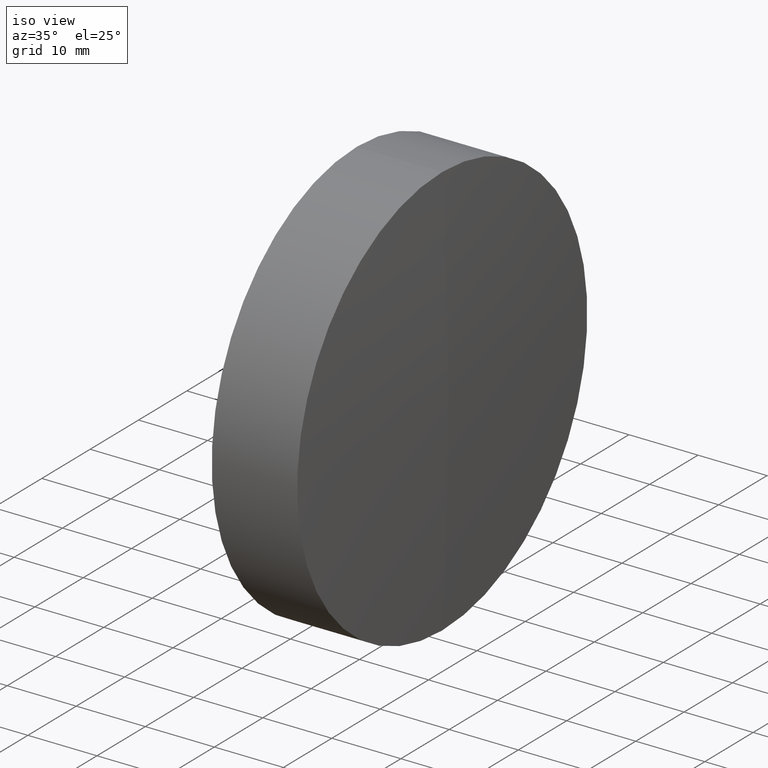
[diagram: clean part render]
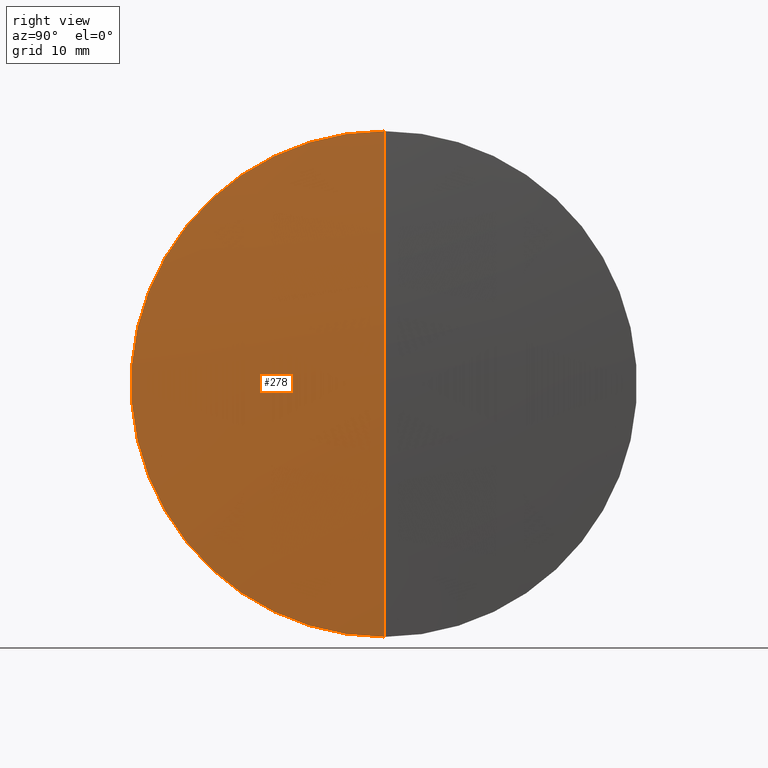
[diagram: tour spotlight — one face highlighted and labeled with its STEP entity id]
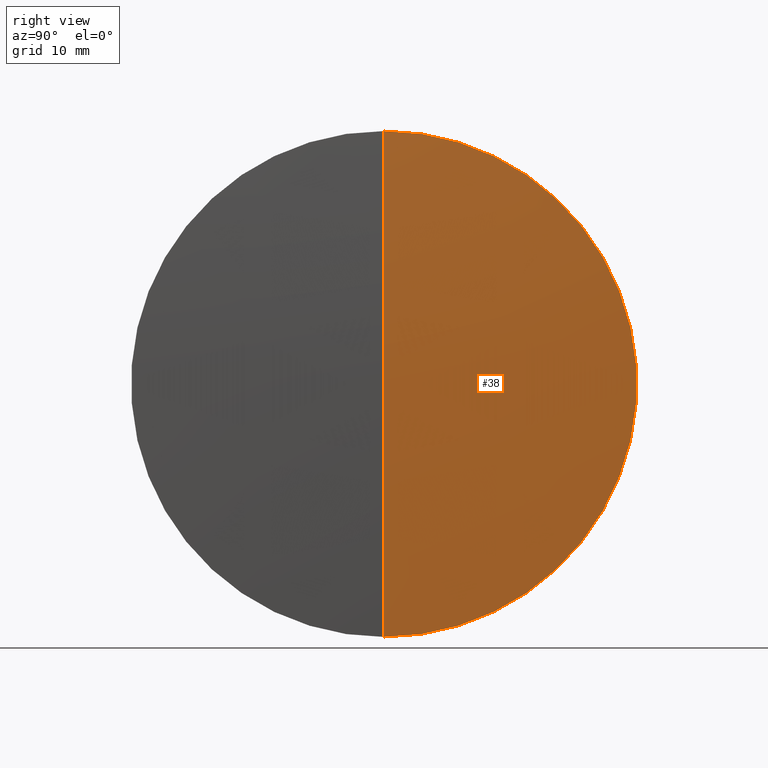
[diagram: tour spotlight — one face highlighted and labeled with its STEP entity id]
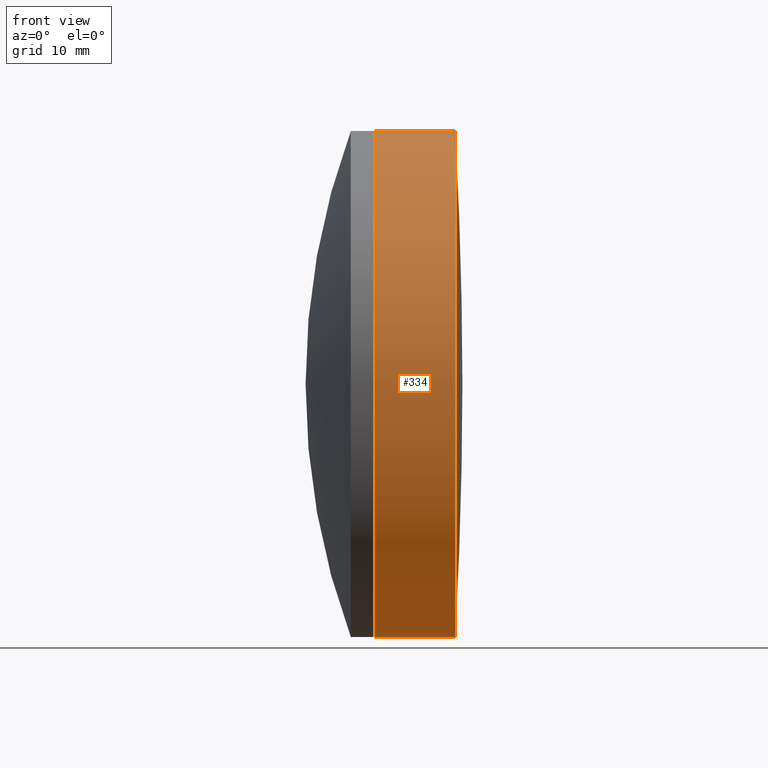
[diagram: tour spotlight — one face highlighted and labeled with its STEP entity id]
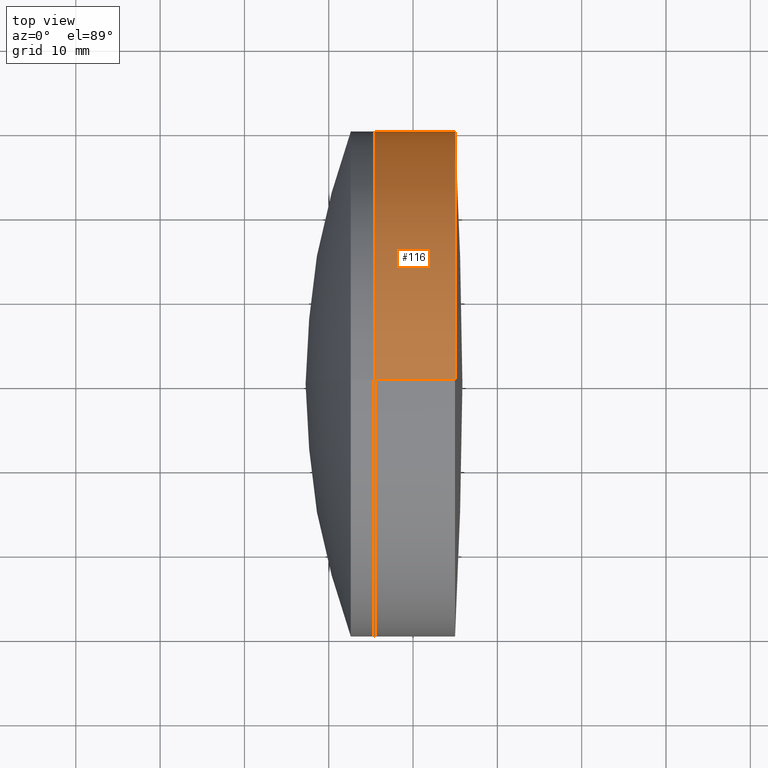
[diagram: tour spotlight — one face highlighted and labeled with its STEP entity id]
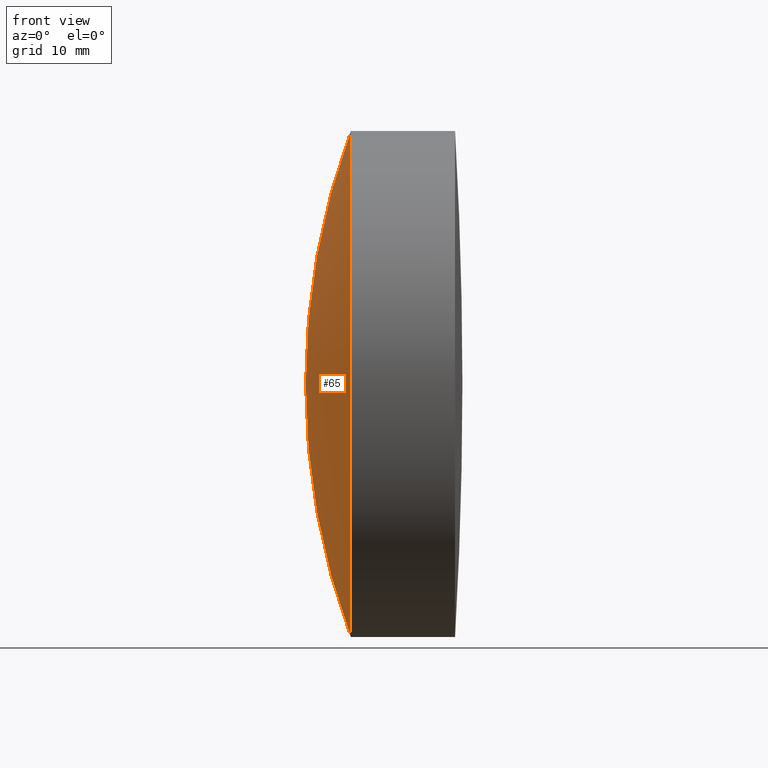
[diagram: tour spotlight — one face highlighted and labeled with its STEP entity id]
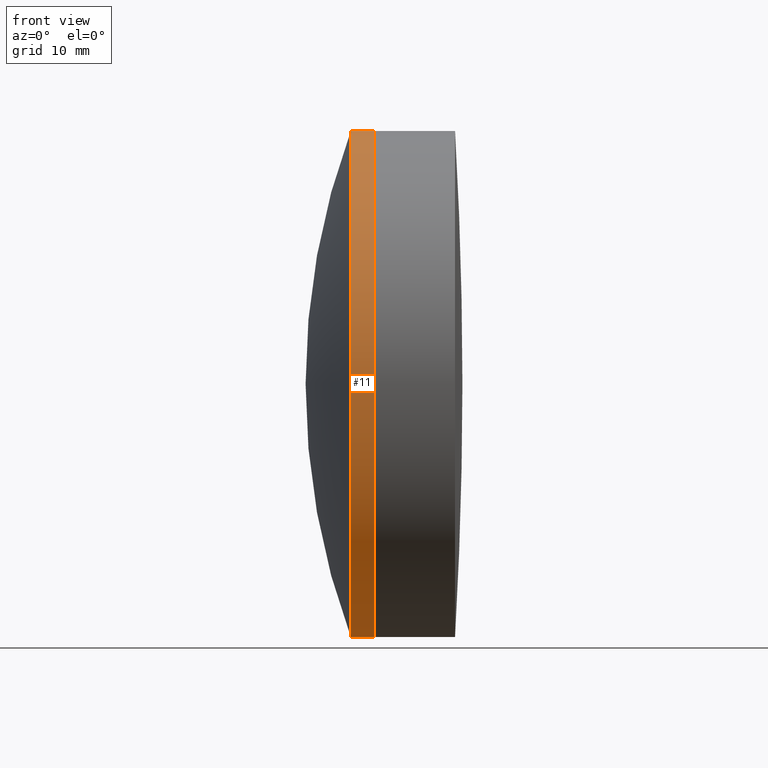
[diagram: tour spotlight — one face highlighted and labeled with its STEP entity id]
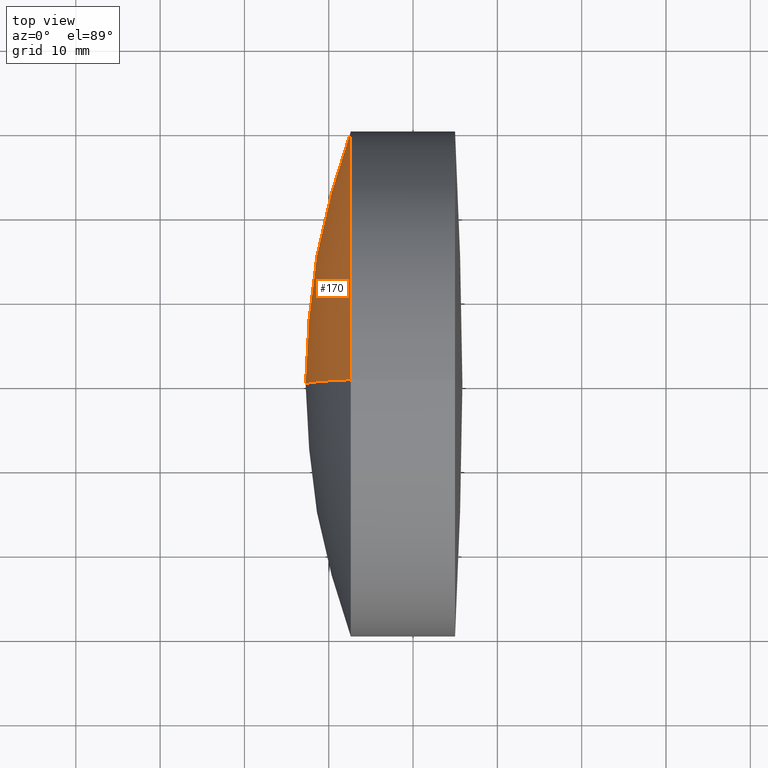
[diagram: tour spotlight — one face highlighted and labeled with its STEP entity id]
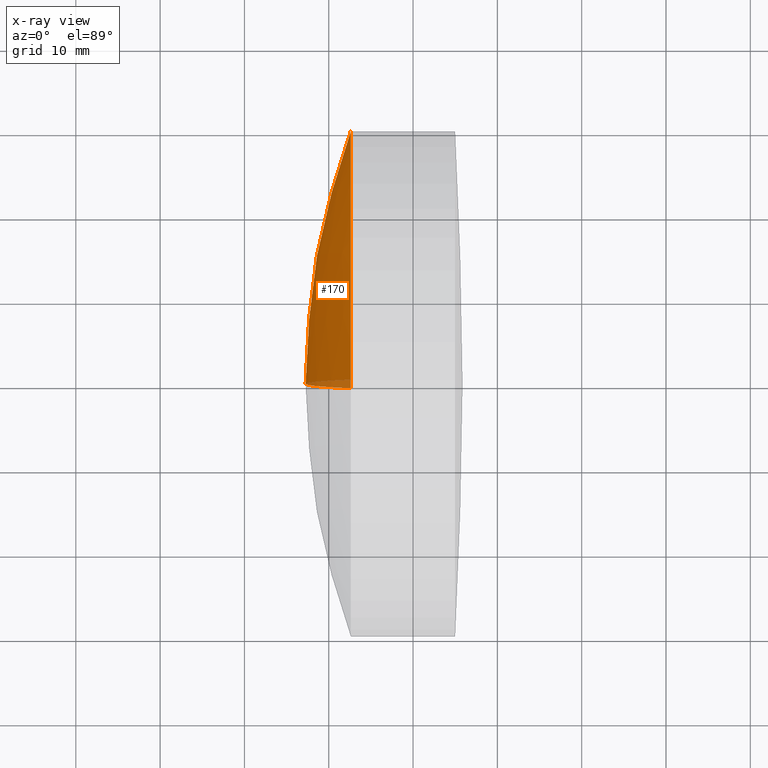
[diagram: x-ray of the same camera — body ghosted, this tour face saturated]
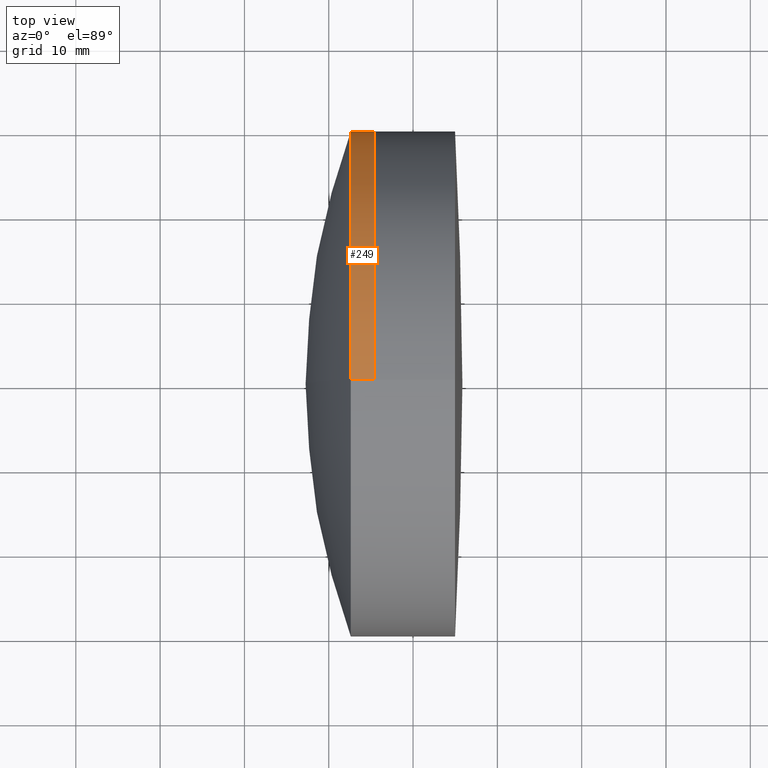
[diagram: tour spotlight — one face highlighted and labeled with its STEP entity id]
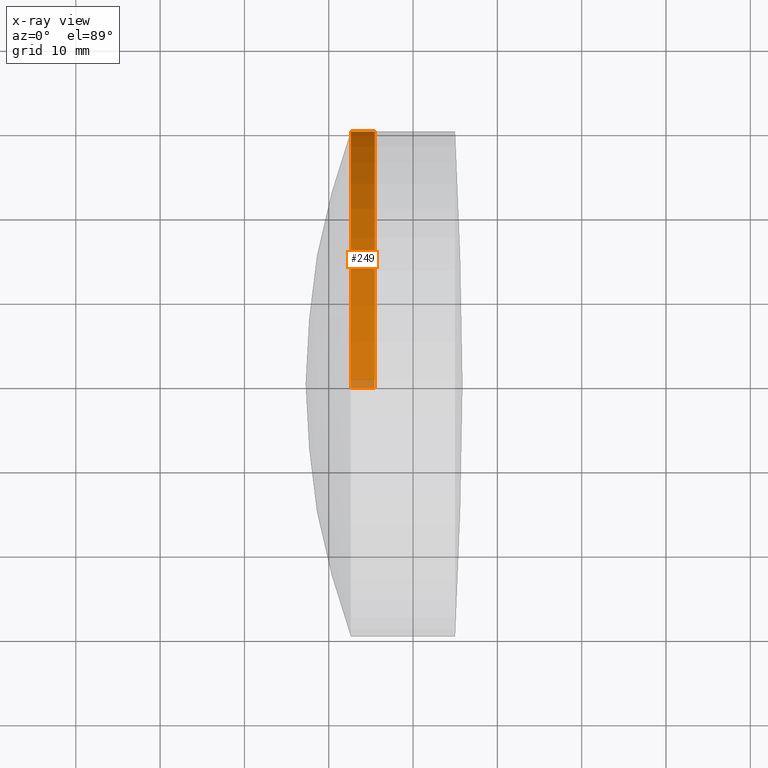
[diagram: x-ray of the same camera — body ghosted, this tour face saturated]
A machine part: a face-by-face anatomy tour. The part has 12 B-rep faces; the first image is the clean iso view, then the 8 largest visible faces are spotlighted one at a time (largest first), each with its STEP entity span.

Face 1 — right view, entity #278. In plain terms, the highlighted spherical surface has radius 515.82 mm.
Definition (entity closure, byte-faithful):
#12 = AXIS2_PLACEMENT_3D ( 'NONE', #245, #274, #114 ) ;
#21 = CARTESIAN_POINT ( 'NONE',  ( 295.8536255512254300, 0.0000000000000000000, 3.158486559680939000E-014 ) ) ;
#33 = CARTESIAN_POINT ( 'NONE',  ( 294.9804892177594400, 0.0000000000000000000, 30.00000000000001400 ) ) ;
#36 = CARTESIAN_POINT ( 'NONE',  ( 294.9804892177594400, 3.673940397442061500E-015, -30.00000000000001400 ) ) ;
#37 = ORIENTED_EDGE ( 'NONE', *, *, #99, .F. ) ;
#47 = SPHERICAL_SURFACE ( 'NONE', #236, 515.8200000000000500 ) ;
#64 = EDGE_CURVE ( 'NONE', #68, #211, #88, .T. ) ;
#68 = VERTEX_POINT ( 'NONE', #21 ) ;
#74 = AXIS2_PLACEMENT_3D ( 'NONE', #204, #177, #339 ) ;
#80 = FACE_OUTER_BOUND ( 'NONE', #284, .T. ) ;
#88 = CIRCLE ( 'NONE', #12, 515.8200000000000500 ) ;
#99 = EDGE_CURVE ( 'NONE', #300, #211, #265, .T. ) ;
#114 = DIRECTION ( 'NONE',  ( 0.0000000000000000000, 0.0000000000000000000, -1.000000000000000000 ) ) ;
#153 = DIRECTION ( 'NONE',  ( 0.0000000000000000000, -1.224646799147353200E-016, 1.000000000000000000 ) ) ;
#167 = DIRECTION ( 'NONE',  ( 0.0000000000000000000, 0.0000000000000000000, 1.000000000000000000 ) ) ;
#177 = DIRECTION ( 'NONE',  ( -1.000000000000000000, -0.0000000000000000000, -0.0000000000000000000 ) ) ;
#198 = CARTESIAN_POINT ( 'NONE',  ( -219.9663744487746400, 0.0000000000000000000, 0.0000000000000000000 ) ) ;
#204 = CARTESIAN_POINT ( 'NONE',  ( 294.9804892177594400, 0.0000000000000000000, 0.0000000000000000000 ) ) ;
#209 = EDGE_CURVE ( 'NONE', #68, #300, #281, .T. ) ;
#211 = VERTEX_POINT ( 'NONE', #33 ) ;
#217 = DIRECTION ( 'NONE',  ( -0.0000000000000000000, 1.000000000000000000, 1.224646799147353200E-016 ) ) ;
#218 = CARTESIAN_POINT ( 'NONE',  ( -219.9663744487746400, 0.0000000000000000000, 0.0000000000000000000 ) ) ;
#222 = DIRECTION ( 'NONE',  ( 0.0000000000000000000, 1.000000000000000000, 0.0000000000000000000 ) ) ;
#236 = AXIS2_PLACEMENT_3D ( 'NONE', #198, #222, #167 ) ;
#245 = CARTESIAN_POINT ( 'NONE',  ( -219.9663744487746400, 0.0000000000000000000, 0.0000000000000000000 ) ) ;
#265 = CIRCLE ( 'NONE', #74, 30.00000000000001400 ) ;
#274 = DIRECTION ( 'NONE',  ( 0.0000000000000000000, -1.000000000000000000, 0.0000000000000000000 ) ) ;
#278 = ADVANCED_FACE ( 'NONE', ( #80 ), #47, .T. ) ;
#280 = ORIENTED_EDGE ( 'NONE', *, *, #209, .F. ) ;
#281 = CIRCLE ( 'NONE', #290, 515.8200000000000500 ) ;
#284 = EDGE_LOOP ( 'NONE', ( #280, #312, #37 ) ) ;
#290 = AXIS2_PLACEMENT_3D ( 'NONE', #218, #217, #153 ) ;
#300 = VERTEX_POINT ( 'NONE', #36 ) ;
#312 = ORIENTED_EDGE ( 'NONE', *, *, #64, .T. ) ;
#339 = DIRECTION ( 'NONE',  ( 0.0000000000000000000, 0.0000000000000000000, 1.000000000000000000 ) ) ;

Face 2 — right view, entity #38. In plain terms, the highlighted spherical surface has radius 515.82 mm.
Definition (entity closure, byte-faithful):
#12 = AXIS2_PLACEMENT_3D ( 'NONE', #245, #274, #114 ) ;
#16 = DIRECTION ( 'NONE',  ( 0.0000000000000000000, 0.0000000000000000000, 1.000000000000000000 ) ) ;
#21 = CARTESIAN_POINT ( 'NONE',  ( 295.8536255512254300, 0.0000000000000000000, 3.158486559680939000E-014 ) ) ;
#22 = DIRECTION ( 'NONE',  ( 0.0000000000000000000, 1.000000000000000000, 0.0000000000000000000 ) ) ;
#26 = ORIENTED_EDGE ( 'NONE', *, *, #130, .F. ) ;
#27 = CARTESIAN_POINT ( 'NONE',  ( -219.9663744487746400, 0.0000000000000000000, 0.0000000000000000000 ) ) ;
#33 = CARTESIAN_POINT ( 'NONE',  ( 294.9804892177594400, 0.0000000000000000000, 30.00000000000001400 ) ) ;
#36 = CARTESIAN_POINT ( 'NONE',  ( 294.9804892177594400, 3.673940397442061500E-015, -30.00000000000001400 ) ) ;
#38 = ADVANCED_FACE ( 'NONE', ( #258 ), #285, .T. ) ;
#53 = ORIENTED_EDGE ( 'NONE', *, *, #64, .F. ) ;
#64 = EDGE_CURVE ( 'NONE', #68, #211, #88, .T. ) ;
#68 = VERTEX_POINT ( 'NONE', #21 ) ;
#78 = EDGE_LOOP ( 'NONE', ( #53, #220, #26 ) ) ;
#88 = CIRCLE ( 'NONE', #12, 515.8200000000000500 ) ;
#114 = DIRECTION ( 'NONE',  ( 0.0000000000000000000, 0.0000000000000000000, -1.000000000000000000 ) ) ;
#118 = AXIS2_PLACEMENT_3D ( 'NONE', #228, #203, #16 ) ;
#130 = EDGE_CURVE ( 'NONE', #211, #300, #206, .T. ) ;
#153 = DIRECTION ( 'NONE',  ( 0.0000000000000000000, -1.224646799147353200E-016, 1.000000000000000000 ) ) ;
#183 = DIRECTION ( 'NONE',  ( 0.0000000000000000000, 0.0000000000000000000, 1.000000000000000000 ) ) ;
#203 = DIRECTION ( 'NONE',  ( -1.000000000000000000, -0.0000000000000000000, -0.0000000000000000000 ) ) ;
#206 = CIRCLE ( 'NONE', #118, 30.00000000000001400 ) ;
#209 = EDGE_CURVE ( 'NONE', #68, #300, #281, .T. ) ;
#211 = VERTEX_POINT ( 'NONE', #33 ) ;
#217 = DIRECTION ( 'NONE',  ( -0.0000000000000000000, 1.000000000000000000, 1.224646799147353200E-016 ) ) ;
#218 = CARTESIAN_POINT ( 'NONE',  ( -219.9663744487746400, 0.0000000000000000000, 0.0000000000000000000 ) ) ;
#220 = ORIENTED_EDGE ( 'NONE', *, *, #209, .T. ) ;
#228 = CARTESIAN_POINT ( 'NONE',  ( 294.9804892177594400, 0.0000000000000000000, 0.0000000000000000000 ) ) ;
#245 = CARTESIAN_POINT ( 'NONE',  ( -219.9663744487746400, 0.0000000000000000000, 0.0000000000000000000 ) ) ;
#258 = FACE_OUTER_BOUND ( 'NONE', #78, .T. ) ;
#259 = AXIS2_PLACEMENT_3D ( 'NONE', #27, #22, #183 ) ;
#274 = DIRECTION ( 'NONE',  ( 0.0000000000000000000, -1.000000000000000000, 0.0000000000000000000 ) ) ;
#281 = CIRCLE ( 'NONE', #290, 515.8200000000000500 ) ;
#285 = SPHERICAL_SURFACE ( 'NONE', #259, 515.8200000000000500 ) ;
#290 = AXIS2_PLACEMENT_3D ( 'NONE', #218, #217, #153 ) ;
#300 = VERTEX_POINT ( 'NONE', #36 ) ;

Face 3 — front view, entity #334. In plain terms, the highlighted cylindrical surface (partial cylindrical patch) has radius 30 mm, axis along (-1, -0, -0).
Definition (entity closure, byte-faithful):
#1 = AXIS2_PLACEMENT_3D ( 'NONE', #165, #191, #329 ) ;
#10 = CARTESIAN_POINT ( 'NONE',  ( 285.4402420783391700, 3.673940397442063100E-015, -30.00000000000003200 ) ) ;
#15 = VERTEX_POINT ( 'NONE', #168 ) ;
#17 = EDGE_LOOP ( 'NONE', ( #230, #147, #180, #187 ) ) ;
#30 = DIRECTION ( 'NONE',  ( -1.000000000000000000, -0.0000000000000000000, -0.0000000000000000000 ) ) ;
#33 = CARTESIAN_POINT ( 'NONE',  ( 294.9804892177594400, 0.0000000000000000000, 30.00000000000001400 ) ) ;
#36 = CARTESIAN_POINT ( 'NONE',  ( 294.9804892177594400, 3.673940397442061500E-015, -30.00000000000001400 ) ) ;
#70 = CIRCLE ( 'NONE', #95, 30.00000000000002500 ) ;
#74 = AXIS2_PLACEMENT_3D ( 'NONE', #204, #177, #339 ) ;
#83 = CARTESIAN_POINT ( 'NONE',  ( -0.5519199926577972300, 3.673940397442062300E-015, -30.00000000000002100 ) ) ;
#94 = VERTEX_POINT ( 'NONE', #10 ) ;
#95 = AXIS2_PLACEMENT_3D ( 'NONE', #145, #306, #117 ) ;
#99 = EDGE_CURVE ( 'NONE', #300, #211, #265, .T. ) ;
#101 = FACE_OUTER_BOUND ( 'NONE', #17, .T. ) ;
#117 = DIRECTION ( 'NONE',  ( 0.0000000000000000000, 0.0000000000000000000, 1.000000000000000000 ) ) ;
#119 = LINE ( 'NONE', #251, #253 ) ;
#122 = CYLINDRICAL_SURFACE ( 'NONE', #1, 30.00000000000002100 ) ;
#145 = CARTESIAN_POINT ( 'NONE',  ( 285.4402420783391700, 0.0000000000000000000, 0.0000000000000000000 ) ) ;
#147 = ORIENTED_EDGE ( 'NONE', *, *, #99, .T. ) ;
#165 = CARTESIAN_POINT ( 'NONE',  ( -0.5519199926577972300, 0.0000000000000000000, 0.0000000000000000000 ) ) ;
#168 = CARTESIAN_POINT ( 'NONE',  ( 285.4402420783391700, 0.0000000000000000000, 30.00000000000003200 ) ) ;
#177 = DIRECTION ( 'NONE',  ( -1.000000000000000000, -0.0000000000000000000, -0.0000000000000000000 ) ) ;
#180 = ORIENTED_EDGE ( 'NONE', *, *, #262, .T. ) ;
#187 = ORIENTED_EDGE ( 'NONE', *, *, #248, .F. ) ;
#191 = DIRECTION ( 'NONE',  ( -1.000000000000000000, -0.0000000000000000000, -0.0000000000000000000 ) ) ;
#204 = CARTESIAN_POINT ( 'NONE',  ( 294.9804892177594400, 0.0000000000000000000, 0.0000000000000000000 ) ) ;
#211 = VERTEX_POINT ( 'NONE', #33 ) ;
#230 = ORIENTED_EDGE ( 'NONE', *, *, #232, .F. ) ;
#232 = EDGE_CURVE ( 'NONE', #300, #94, #268, .T. ) ;
#248 = EDGE_CURVE ( 'NONE', #94, #15, #70, .T. ) ;
#251 = CARTESIAN_POINT ( 'NONE',  ( -0.5519199926577972300, 0.0000000000000000000, 30.00000000000002100 ) ) ;
#253 = VECTOR ( 'NONE', #277, 1000.000000000000000 ) ;
#262 = EDGE_CURVE ( 'NONE', #211, #15, #119, .T. ) ;
#265 = CIRCLE ( 'NONE', #74, 30.00000000000001400 ) ;
#268 = LINE ( 'NONE', #83, #337 ) ;
#277 = DIRECTION ( 'NONE',  ( -1.000000000000000000, -0.0000000000000000000, -0.0000000000000000000 ) ) ;
#300 = VERTEX_POINT ( 'NONE', #36 ) ;
#306 = DIRECTION ( 'NONE',  ( -1.000000000000000000, -0.0000000000000000000, -0.0000000000000000000 ) ) ;
#329 = DIRECTION ( 'NONE',  ( 0.0000000000000000000, 0.0000000000000000000, 1.000000000000000000 ) ) ;
#334 = ADVANCED_FACE ( 'NONE', ( #101 ), #122, .T. ) ;
#337 = VECTOR ( 'NONE', #30, 1000.000000000000000 ) ;
#339 = DIRECTION ( 'NONE',  ( 0.0000000000000000000, 0.0000000000000000000, 1.000000000000000000 ) ) ;

Face 4 — top view, entity #116. In plain terms, the highlighted cylindrical surface (partial cylindrical patch) has radius 30 mm, axis along (-1, -0, -0).
Definition (entity closure, byte-faithful):
#2 = ORIENTED_EDGE ( 'NONE', *, *, #232, .T. ) ;
#4 = CARTESIAN_POINT ( 'NONE',  ( 285.4402420783391700, 0.0000000000000000000, 0.0000000000000000000 ) ) ;
#10 = CARTESIAN_POINT ( 'NONE',  ( 285.4402420783391700, 3.673940397442063100E-015, -30.00000000000003200 ) ) ;
#15 = VERTEX_POINT ( 'NONE', #168 ) ;
#16 = DIRECTION ( 'NONE',  ( 0.0000000000000000000, 0.0000000000000000000, 1.000000000000000000 ) ) ;
#30 = DIRECTION ( 'NONE',  ( -1.000000000000000000, -0.0000000000000000000, -0.0000000000000000000 ) ) ;
#33 = CARTESIAN_POINT ( 'NONE',  ( 294.9804892177594400, 0.0000000000000000000, 30.00000000000001400 ) ) ;
#35 = DIRECTION ( 'NONE',  ( 0.0000000000000000000, 0.0000000000000000000, 1.000000000000000000 ) ) ;
#36 = CARTESIAN_POINT ( 'NONE',  ( 294.9804892177594400, 3.673940397442061500E-015, -30.00000000000001400 ) ) ;
#40 = CYLINDRICAL_SURFACE ( 'NONE', #42, 30.00000000000002100 ) ;
#42 = AXIS2_PLACEMENT_3D ( 'NONE', #221, #347, #35 ) ;
#62 = FACE_OUTER_BOUND ( 'NONE', #345, .T. ) ;
#83 = CARTESIAN_POINT ( 'NONE',  ( -0.5519199926577972300, 3.673940397442062300E-015, -30.00000000000002100 ) ) ;
#86 = ORIENTED_EDGE ( 'NONE', *, *, #343, .F. ) ;
#94 = VERTEX_POINT ( 'NONE', #10 ) ;
#108 = ORIENTED_EDGE ( 'NONE', *, *, #130, .T. ) ;
#116 = ADVANCED_FACE ( 'NONE', ( #62 ), #40, .T. ) ;
#118 = AXIS2_PLACEMENT_3D ( 'NONE', #228, #203, #16 ) ;
#119 = LINE ( 'NONE', #251, #253 ) ;
#130 = EDGE_CURVE ( 'NONE', #211, #300, #206, .T. ) ;
#162 = DIRECTION ( 'NONE',  ( -1.000000000000000000, -0.0000000000000000000, -0.0000000000000000000 ) ) ;
#168 = CARTESIAN_POINT ( 'NONE',  ( 285.4402420783391700, 0.0000000000000000000, 30.00000000000003200 ) ) ;
#201 = CIRCLE ( 'NONE', #288, 30.00000000000002500 ) ;
#203 = DIRECTION ( 'NONE',  ( -1.000000000000000000, -0.0000000000000000000, -0.0000000000000000000 ) ) ;
#206 = CIRCLE ( 'NONE', #118, 30.00000000000001400 ) ;
#211 = VERTEX_POINT ( 'NONE', #33 ) ;
#221 = CARTESIAN_POINT ( 'NONE',  ( -0.5519199926577972300, 0.0000000000000000000, 0.0000000000000000000 ) ) ;
#228 = CARTESIAN_POINT ( 'NONE',  ( 294.9804892177594400, 0.0000000000000000000, 0.0000000000000000000 ) ) ;
#232 = EDGE_CURVE ( 'NONE', #300, #94, #268, .T. ) ;
#251 = CARTESIAN_POINT ( 'NONE',  ( -0.5519199926577972300, 0.0000000000000000000, 30.00000000000002100 ) ) ;
#253 = VECTOR ( 'NONE', #277, 1000.000000000000000 ) ;
#255 = ORIENTED_EDGE ( 'NONE', *, *, #262, .F. ) ;
#262 = EDGE_CURVE ( 'NONE', #211, #15, #119, .T. ) ;
#268 = LINE ( 'NONE', #83, #337 ) ;
#277 = DIRECTION ( 'NONE',  ( -1.000000000000000000, -0.0000000000000000000, -0.0000000000000000000 ) ) ;
#288 = AXIS2_PLACEMENT_3D ( 'NONE', #4, #162, #327 ) ;
#300 = VERTEX_POINT ( 'NONE', #36 ) ;
#327 = DIRECTION ( 'NONE',  ( 0.0000000000000000000, 0.0000000000000000000, 1.000000000000000000 ) ) ;
#337 = VECTOR ( 'NONE', #30, 1000.000000000000000 ) ;
#343 = EDGE_CURVE ( 'NONE', #15, #94, #201, .T. ) ;
#345 = EDGE_LOOP ( 'NONE', ( #108, #2, #86, #255 ) ) ;
#347 = DIRECTION ( 'NONE',  ( -1.000000000000000000, -0.0000000000000000000, -0.0000000000000000000 ) ) ;

Face 5 — front view, entity #65. In plain terms, the highlighted spherical surface has radius 86.596 mm.
Definition (entity closure, byte-faithful):
#32 = VERTEX_POINT ( 'NONE', #289 ) ;
#57 = DIRECTION ( 'NONE',  ( 0.0000000000000000000, -1.000000000000000000, -1.224646799147353200E-016 ) ) ;
#58 = DIRECTION ( 'NONE',  ( 0.0000000000000000000, 0.0000000000000000000, 1.000000000000000000 ) ) ;
#59 = DIRECTION ( 'NONE',  ( -0.0000000000000000000, -1.000000000000000000, -0.0000000000000000000 ) ) ;
#61 = VERTEX_POINT ( 'NONE', #316 ) ;
#65 = ADVANCED_FACE ( 'NONE', ( #152 ), #98, .T. ) ;
#71 = ORIENTED_EDGE ( 'NONE', *, *, #305, .F. ) ;
#87 = CARTESIAN_POINT ( 'NONE',  ( 363.8496255512254700, 0.0000000000000000000, 1.092194461860211400E-015 ) ) ;
#98 = SPHERICAL_SURFACE ( 'NONE', #279, 86.59599999999997500 ) ;
#126 = ORIENTED_EDGE ( 'NONE', *, *, #154, .T. ) ;
#131 = AXIS2_PLACEMENT_3D ( 'NONE', #273, #57, #136 ) ;
#132 = CARTESIAN_POINT ( 'NONE',  ( 363.8496255512254700, 0.0000000000000000000, 1.092194461860211400E-015 ) ) ;
#136 = DIRECTION ( 'NONE',  ( 0.0000000000000000000, 1.224646799147353200E-016, -1.000000000000000000 ) ) ;
#139 = DIRECTION ( 'NONE',  ( -1.000000000000000000, -0.0000000000000000000, -0.0000000000000000000 ) ) ;
#141 = ORIENTED_EDGE ( 'NONE', *, *, #149, .T. ) ;
#144 = CARTESIAN_POINT ( 'NONE',  ( 282.6162136076169400, 0.0000000000000000000, 0.0000000000000000000 ) ) ;
#149 = EDGE_CURVE ( 'NONE', #61, #156, #328, .T. ) ;
#152 = FACE_OUTER_BOUND ( 'NONE', #315, .T. ) ;
#154 = EDGE_CURVE ( 'NONE', #156, #32, #309, .T. ) ;
#156 = VERTEX_POINT ( 'NONE', #304 ) ;
#185 = AXIS2_PLACEMENT_3D ( 'NONE', #144, #139, #264 ) ;
#244 = DIRECTION ( 'NONE',  ( 0.0000000000000000000, 1.000000000000000000, -0.0000000000000000000 ) ) ;
#260 = AXIS2_PLACEMENT_3D ( 'NONE', #87, #244, #58 ) ;
#264 = DIRECTION ( 'NONE',  ( 0.0000000000000000000, 0.0000000000000000000, 1.000000000000000000 ) ) ;
#273 = CARTESIAN_POINT ( 'NONE',  ( 363.8496255512254700, 0.0000000000000000000, 1.092194461860211400E-015 ) ) ;
#279 = AXIS2_PLACEMENT_3D ( 'NONE', #132, #59, #303 ) ;
#289 = CARTESIAN_POINT ( 'NONE',  ( 277.2536255512254700, 0.0000000000000000000, -4.210281249087997900E-015 ) ) ;
#303 = DIRECTION ( 'NONE',  ( 0.0000000000000000000, 0.0000000000000000000, -1.000000000000000000 ) ) ;
#304 = CARTESIAN_POINT ( 'NONE',  ( 282.6162136076169400, -3.673940397442059200E-015, 30.00000000000000000 ) ) ;
#305 = EDGE_CURVE ( 'NONE', #61, #32, #313, .T. ) ;
#309 = CIRCLE ( 'NONE', #131, 86.59599999999997500 ) ;
#313 = CIRCLE ( 'NONE', #260, 86.59599999999997500 ) ;
#315 = EDGE_LOOP ( 'NONE', ( #141, #126, #71 ) ) ;
#316 = CARTESIAN_POINT ( 'NONE',  ( 282.6162136076169400, 0.0000000000000000000, -30.00000000000000000 ) ) ;
#328 = CIRCLE ( 'NONE', #185, 30.00000000000000000 ) ;

Face 6 — front view, entity #11. In plain terms, the highlighted cylindrical surface (partial cylindrical patch) has radius 30 mm, axis along (-1, -0, -0).
Definition (entity closure, byte-faithful):
#6 = EDGE_CURVE ( 'NONE', #287, #156, #171, .T. ) ;
#11 = ADVANCED_FACE ( 'NONE', ( #346 ), #342, .T. ) ;
#14 = DIRECTION ( 'NONE',  ( -1.000000000000000000, -0.0000000000000000000, -0.0000000000000000000 ) ) ;
#25 = DIRECTION ( 'NONE',  ( -1.000000000000000000, -0.0000000000000000000, -0.0000000000000000000 ) ) ;
#39 = ORIENTED_EDGE ( 'NONE', *, *, #242, .T. ) ;
#46 = AXIS2_PLACEMENT_3D ( 'NONE', #200, #14, #169 ) ;
#48 = CARTESIAN_POINT ( 'NONE',  ( 124.5233095260452400, 0.0000000000000000000, 0.0000000000000000000 ) ) ;
#61 = VERTEX_POINT ( 'NONE', #316 ) ;
#63 = CARTESIAN_POINT ( 'NONE',  ( 285.4402420783391700, 0.0000000000000000000, 30.00000000000000000 ) ) ;
#75 = CIRCLE ( 'NONE', #46, 30.00000000000000000 ) ;
#77 = LINE ( 'NONE', #295, #254 ) ;
#104 = VECTOR ( 'NONE', #25, 1000.000000000000000 ) ;
#134 = CARTESIAN_POINT ( 'NONE',  ( 124.5233095260452400, 0.0000000000000000000, 30.00000000000000000 ) ) ;
#139 = DIRECTION ( 'NONE',  ( -1.000000000000000000, -0.0000000000000000000, -0.0000000000000000000 ) ) ;
#143 = CARTESIAN_POINT ( 'NONE',  ( 285.4402420783391700, 3.673940397442059200E-015, -30.00000000000000000 ) ) ;
#144 = CARTESIAN_POINT ( 'NONE',  ( 282.6162136076169400, 0.0000000000000000000, 0.0000000000000000000 ) ) ;
#149 = EDGE_CURVE ( 'NONE', #61, #156, #328, .T. ) ;
#156 = VERTEX_POINT ( 'NONE', #304 ) ;
#157 = EDGE_LOOP ( 'NONE', ( #308, #39, #291, #225 ) ) ;
#159 = DIRECTION ( 'NONE',  ( 0.0000000000000000000, 0.0000000000000000000, 1.000000000000000000 ) ) ;
#169 = DIRECTION ( 'NONE',  ( 0.0000000000000000000, 0.0000000000000000000, 1.000000000000000000 ) ) ;
#171 = LINE ( 'NONE', #134, #104 ) ;
#176 = EDGE_CURVE ( 'NONE', #293, #61, #77, .T. ) ;
#185 = AXIS2_PLACEMENT_3D ( 'NONE', #144, #139, #264 ) ;
#188 = DIRECTION ( 'NONE',  ( -1.000000000000000000, -0.0000000000000000000, -0.0000000000000000000 ) ) ;
#196 = AXIS2_PLACEMENT_3D ( 'NONE', #48, #188, #159 ) ;
#200 = CARTESIAN_POINT ( 'NONE',  ( 285.4402420783391700, 0.0000000000000000000, 0.0000000000000000000 ) ) ;
#225 = ORIENTED_EDGE ( 'NONE', *, *, #149, .F. ) ;
#231 = DIRECTION ( 'NONE',  ( -1.000000000000000000, -0.0000000000000000000, -0.0000000000000000000 ) ) ;
#242 = EDGE_CURVE ( 'NONE', #293, #287, #75, .T. ) ;
#254 = VECTOR ( 'NONE', #231, 1000.000000000000000 ) ;
#264 = DIRECTION ( 'NONE',  ( 0.0000000000000000000, 0.0000000000000000000, 1.000000000000000000 ) ) ;
#287 = VERTEX_POINT ( 'NONE', #63 ) ;
#291 = ORIENTED_EDGE ( 'NONE', *, *, #6, .T. ) ;
#293 = VERTEX_POINT ( 'NONE', #143 ) ;
#295 = CARTESIAN_POINT ( 'NONE',  ( 124.5233095260452400, 3.673940397442059200E-015, -30.00000000000000000 ) ) ;
#304 = CARTESIAN_POINT ( 'NONE',  ( 282.6162136076169400, -3.673940397442059200E-015, 30.00000000000000000 ) ) ;
#308 = ORIENTED_EDGE ( 'NONE', *, *, #176, .F. ) ;
#316 = CARTESIAN_POINT ( 'NONE',  ( 282.6162136076169400, 0.0000000000000000000, -30.00000000000000000 ) ) ;
#328 = CIRCLE ( 'NONE', #185, 30.00000000000000000 ) ;
#342 = CYLINDRICAL_SURFACE ( 'NONE', #196, 30.00000000000000000 ) ;
#346 = FACE_OUTER_BOUND ( 'NONE', #157, .T. ) ;

Face 7 — top view, entity #170. An x-ray twin of the same camera follows (body ghosted, this face saturated) — the face is partly hidden behind the body. In plain terms, the highlighted spherical surface has radius 86.596 mm.
Definition (entity closure, byte-faithful):
#24 = AXIS2_PLACEMENT_3D ( 'NONE', #215, #267, #163 ) ;
#32 = VERTEX_POINT ( 'NONE', #289 ) ;
#52 = FACE_OUTER_BOUND ( 'NONE', #234, .T. ) ;
#57 = DIRECTION ( 'NONE',  ( 0.0000000000000000000, -1.000000000000000000, -1.224646799147353200E-016 ) ) ;
#58 = DIRECTION ( 'NONE',  ( 0.0000000000000000000, 0.0000000000000000000, 1.000000000000000000 ) ) ;
#61 = VERTEX_POINT ( 'NONE', #316 ) ;
#66 = AXIS2_PLACEMENT_3D ( 'NONE', #320, #123, #276 ) ;
#87 = CARTESIAN_POINT ( 'NONE',  ( 363.8496255512254700, 0.0000000000000000000, 1.092194461860211400E-015 ) ) ;
#106 = CIRCLE ( 'NONE', #24, 30.00000000000000000 ) ;
#123 = DIRECTION ( 'NONE',  ( -0.0000000000000000000, -1.000000000000000000, -0.0000000000000000000 ) ) ;
#131 = AXIS2_PLACEMENT_3D ( 'NONE', #273, #57, #136 ) ;
#135 = ORIENTED_EDGE ( 'NONE', *, *, #305, .T. ) ;
#136 = DIRECTION ( 'NONE',  ( 0.0000000000000000000, 1.224646799147353200E-016, -1.000000000000000000 ) ) ;
#154 = EDGE_CURVE ( 'NONE', #156, #32, #309, .T. ) ;
#156 = VERTEX_POINT ( 'NONE', #304 ) ;
#163 = DIRECTION ( 'NONE',  ( 0.0000000000000000000, 0.0000000000000000000, 1.000000000000000000 ) ) ;
#170 = ADVANCED_FACE ( 'NONE', ( #52 ), #314, .T. ) ;
#212 = EDGE_CURVE ( 'NONE', #156, #61, #106, .T. ) ;
#215 = CARTESIAN_POINT ( 'NONE',  ( 282.6162136076169400, 0.0000000000000000000, 0.0000000000000000000 ) ) ;
#234 = EDGE_LOOP ( 'NONE', ( #237, #261, #135 ) ) ;
#237 = ORIENTED_EDGE ( 'NONE', *, *, #154, .F. ) ;
#244 = DIRECTION ( 'NONE',  ( 0.0000000000000000000, 1.000000000000000000, -0.0000000000000000000 ) ) ;
#260 = AXIS2_PLACEMENT_3D ( 'NONE', #87, #244, #58 ) ;
#261 = ORIENTED_EDGE ( 'NONE', *, *, #212, .T. ) ;
#267 = DIRECTION ( 'NONE',  ( -1.000000000000000000, -0.0000000000000000000, -0.0000000000000000000 ) ) ;
#273 = CARTESIAN_POINT ( 'NONE',  ( 363.8496255512254700, 0.0000000000000000000, 1.092194461860211400E-015 ) ) ;
#276 = DIRECTION ( 'NONE',  ( 0.0000000000000000000, 0.0000000000000000000, -1.000000000000000000 ) ) ;
#289 = CARTESIAN_POINT ( 'NONE',  ( 277.2536255512254700, 0.0000000000000000000, -4.210281249087997900E-015 ) ) ;
#304 = CARTESIAN_POINT ( 'NONE',  ( 282.6162136076169400, -3.673940397442059200E-015, 30.00000000000000000 ) ) ;
#305 = EDGE_CURVE ( 'NONE', #61, #32, #313, .T. ) ;
#309 = CIRCLE ( 'NONE', #131, 86.59599999999997500 ) ;
#313 = CIRCLE ( 'NONE', #260, 86.59599999999997500 ) ;
#314 = SPHERICAL_SURFACE ( 'NONE', #66, 86.59599999999997500 ) ;
#316 = CARTESIAN_POINT ( 'NONE',  ( 282.6162136076169400, 0.0000000000000000000, -30.00000000000000000 ) ) ;
#320 = CARTESIAN_POINT ( 'NONE',  ( 363.8496255512254700, 0.0000000000000000000, 1.092194461860211400E-015 ) ) ;

Face 8 — top view, entity #249. An x-ray twin of the same camera follows (body ghosted, this face saturated) — the face is partly hidden behind the body. In plain terms, the highlighted cylindrical surface (partial cylindrical patch) has radius 30 mm, axis along (-1, -0, -0).
Definition (entity closure, byte-faithful):
#6 = EDGE_CURVE ( 'NONE', #287, #156, #171, .T. ) ;
#20 = ORIENTED_EDGE ( 'NONE', *, *, #176, .T. ) ;
#24 = AXIS2_PLACEMENT_3D ( 'NONE', #215, #267, #163 ) ;
#25 = DIRECTION ( 'NONE',  ( -1.000000000000000000, -0.0000000000000000000, -0.0000000000000000000 ) ) ;
#61 = VERTEX_POINT ( 'NONE', #316 ) ;
#63 = CARTESIAN_POINT ( 'NONE',  ( 285.4402420783391700, 0.0000000000000000000, 30.00000000000000000 ) ) ;
#67 = DIRECTION ( 'NONE',  ( 0.0000000000000000000, 0.0000000000000000000, 1.000000000000000000 ) ) ;
#72 = ORIENTED_EDGE ( 'NONE', *, *, #212, .F. ) ;
#77 = LINE ( 'NONE', #295, #254 ) ;
#90 = AXIS2_PLACEMENT_3D ( 'NONE', #137, #299, #111 ) ;
#104 = VECTOR ( 'NONE', #25, 1000.000000000000000 ) ;
#106 = CIRCLE ( 'NONE', #24, 30.00000000000000000 ) ;
#111 = DIRECTION ( 'NONE',  ( 0.0000000000000000000, 0.0000000000000000000, 1.000000000000000000 ) ) ;
#134 = CARTESIAN_POINT ( 'NONE',  ( 124.5233095260452400, 0.0000000000000000000, 30.00000000000000000 ) ) ;
#137 = CARTESIAN_POINT ( 'NONE',  ( 285.4402420783391700, 0.0000000000000000000, 0.0000000000000000000 ) ) ;
#143 = CARTESIAN_POINT ( 'NONE',  ( 285.4402420783391700, 3.673940397442059200E-015, -30.00000000000000000 ) ) ;
#151 = ORIENTED_EDGE ( 'NONE', *, *, #6, .F. ) ;
#156 = VERTEX_POINT ( 'NONE', #304 ) ;
#163 = DIRECTION ( 'NONE',  ( 0.0000000000000000000, 0.0000000000000000000, 1.000000000000000000 ) ) ;
#171 = LINE ( 'NONE', #134, #104 ) ;
#176 = EDGE_CURVE ( 'NONE', #293, #61, #77, .T. ) ;
#181 = CIRCLE ( 'NONE', #90, 30.00000000000000000 ) ;
#205 = EDGE_LOOP ( 'NONE', ( #341, #20, #72, #151 ) ) ;
#212 = EDGE_CURVE ( 'NONE', #156, #61, #106, .T. ) ;
#215 = CARTESIAN_POINT ( 'NONE',  ( 282.6162136076169400, 0.0000000000000000000, 0.0000000000000000000 ) ) ;
#231 = DIRECTION ( 'NONE',  ( -1.000000000000000000, -0.0000000000000000000, -0.0000000000000000000 ) ) ;
#249 = ADVANCED_FACE ( 'NONE', ( #263 ), #321, .T. ) ;
#250 = AXIS2_PLACEMENT_3D ( 'NONE', #336, #252, #67 ) ;
#252 = DIRECTION ( 'NONE',  ( -1.000000000000000000, -0.0000000000000000000, -0.0000000000000000000 ) ) ;
#254 = VECTOR ( 'NONE', #231, 1000.000000000000000 ) ;
#263 = FACE_OUTER_BOUND ( 'NONE', #205, .T. ) ;
#267 = DIRECTION ( 'NONE',  ( -1.000000000000000000, -0.0000000000000000000, -0.0000000000000000000 ) ) ;
#287 = VERTEX_POINT ( 'NONE', #63 ) ;
#293 = VERTEX_POINT ( 'NONE', #143 ) ;
#295 = CARTESIAN_POINT ( 'NONE',  ( 124.5233095260452400, 3.673940397442059200E-015, -30.00000000000000000 ) ) ;
#299 = DIRECTION ( 'NONE',  ( -1.000000000000000000, -0.0000000000000000000, -0.0000000000000000000 ) ) ;
#304 = CARTESIAN_POINT ( 'NONE',  ( 282.6162136076169400, -3.673940397442059200E-015, 30.00000000000000000 ) ) ;
#316 = CARTESIAN_POINT ( 'NONE',  ( 282.6162136076169400, 0.0000000000000000000, -30.00000000000000000 ) ) ;
#317 = EDGE_CURVE ( 'NONE', #287, #293, #181, .T. ) ;
#321 = CYLINDRICAL_SURFACE ( 'NONE', #250, 30.00000000000000000 ) ;
#336 = CARTESIAN_POINT ( 'NONE',  ( 124.5233095260452400, 0.0000000000000000000, 0.0000000000000000000 ) ) ;
#341 = ORIENTED_EDGE ( 'NONE', *, *, #317, .T. ) ;